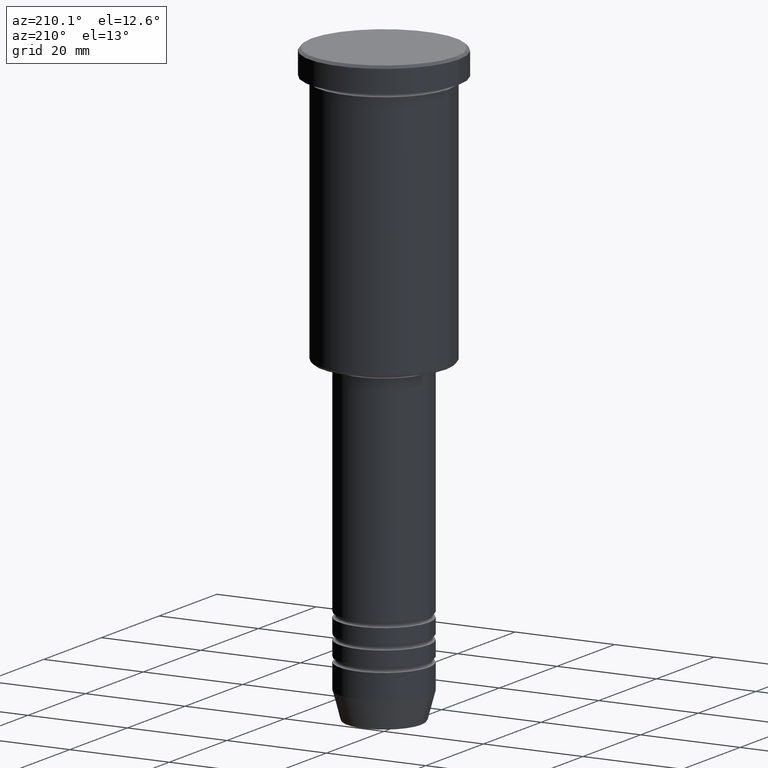
[diagram: clean part render]
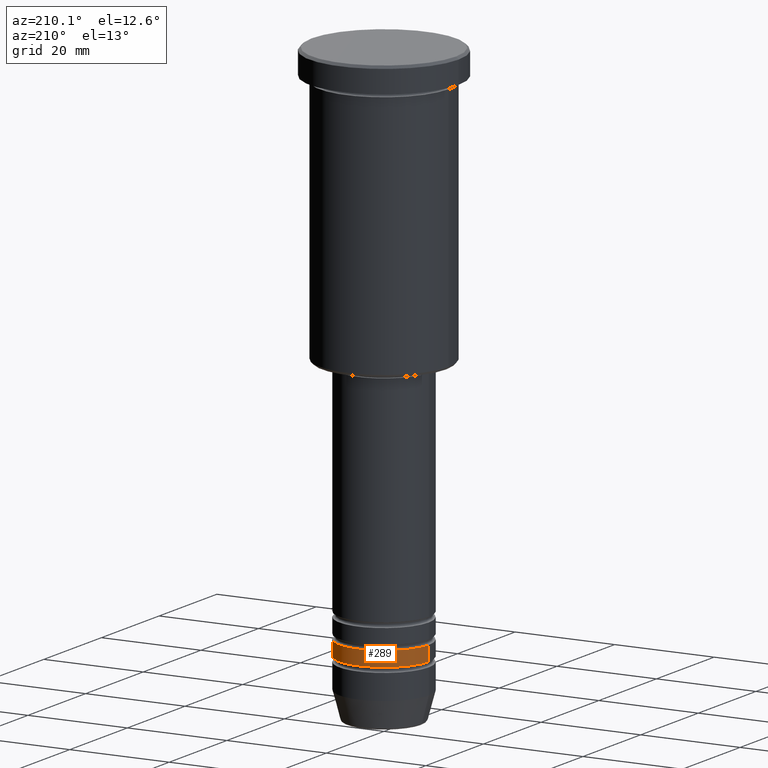
[diagram: same view with one face highlighted and labeled with its STEP entity id]
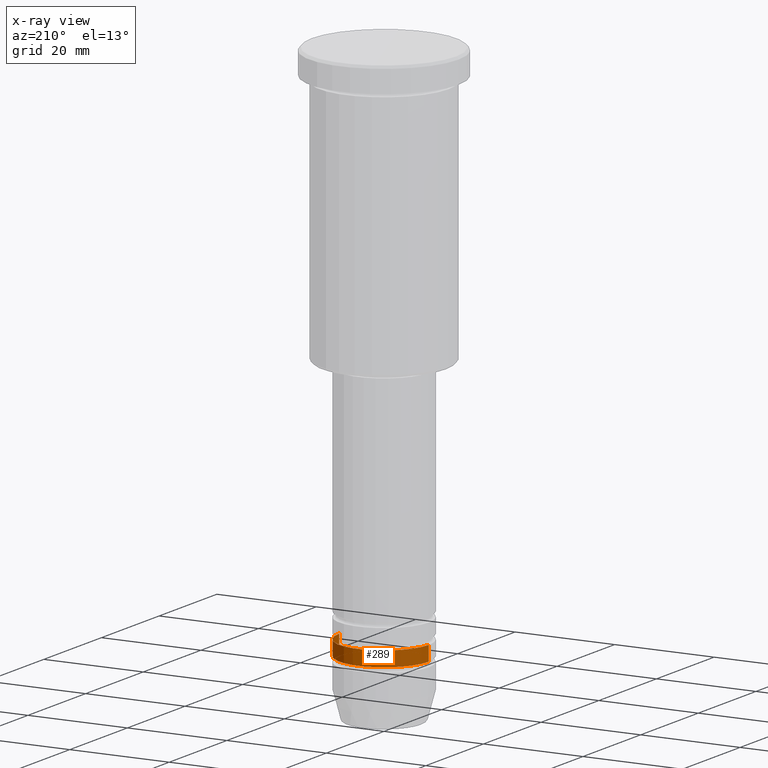
[diagram: x-ray of the same camera — body ghosted, the highlighted face saturated]
A machine part, auxiliary view. The second image highlights one B-rep face of the part: STEP entity #289.
The next image is the same camera in x-ray: the body ghosted, the highlighted face saturated — about 0% of this face is hidden behind the body in this view.
In plain terms, the highlighted cylindrical surface (partial cylindrical patch) has radius 9 mm, axis along (-0, -0, 1).
Its self-contained STEP definition (entity closure, byte-faithful):
#14 = VERTEX_POINT ( 'NONE', #1009 ) ;
#23 = DIRECTION ( 'NONE',  ( 1.000000000000000000, 0.000000000000000000, 0.000000000000000000 ) ) ;
#95 = ORIENTED_EDGE ( 'NONE', *, *, #102, .T. ) ;
#97 = VERTEX_POINT ( 'NONE', #288 ) ;
#102 = EDGE_CURVE ( 'NONE', #623, #703, #824, .T. ) ;
#105 = FACE_OUTER_BOUND ( 'NONE', #634, .T. ) ;
#148 = VECTOR ( 'NONE', #1107, 1000.000000000000000 ) ;
#194 = CYLINDRICAL_SURFACE ( 'NONE', #491, 9.000000000000001776 ) ;
#206 = DIRECTION ( 'NONE',  ( -0.000000000000000000, -0.000000000000000000, 1.000000000000000000 ) ) ;
#279 = CARTESIAN_POINT ( 'NONE',  ( -9.000000000000001776, 1.102182119232617911E-15, -108.4999999999999716 ) ) ;
#288 = CARTESIAN_POINT ( 'NONE',  ( -9.000000000000000000, 1.102182119232617714E-15, -105.4999999999999858 ) ) ;
#289 = ADVANCED_FACE ( 'NONE', ( #105 ), #194, .T. ) ;
#292 = DIRECTION ( 'NONE',  ( 1.000000000000000000, 0.000000000000000000, 0.000000000000000000 ) ) ;
#351 = DIRECTION ( 'NONE',  ( -0.000000000000000000, -0.000000000000000000, 1.000000000000000000 ) ) ;
#376 = AXIS2_PLACEMENT_3D ( 'NONE', #718, #910, #810 ) ;
#383 = EDGE_CURVE ( 'NONE', #623, #14, #739, .T. ) ;
#427 = AXIS2_PLACEMENT_3D ( 'NONE', #655, #734, #23 ) ;
#491 = AXIS2_PLACEMENT_3D ( 'NONE', #917, #206, #292 ) ;
#548 = ORIENTED_EDGE ( 'NONE', *, *, #618, .T. ) ;
#618 = EDGE_CURVE ( 'NONE', #703, #97, #720, .T. ) ;
#623 = VERTEX_POINT ( 'NONE', #714 ) ;
#634 = EDGE_LOOP ( 'NONE', ( #95, #548, #856, #971 ) ) ;
#643 = VECTOR ( 'NONE', #351, 1000.000000000000000 ) ;
#655 = CARTESIAN_POINT ( 'NONE',  ( 0.000000000000000000, 0.000000000000000000, -108.4999999999999716 ) ) ;
#703 = VERTEX_POINT ( 'NONE', #279 ) ;
#714 = CARTESIAN_POINT ( 'NONE',  ( 9.000000000000001776, 0.000000000000000000, -108.4999999999999716 ) ) ;
#718 = CARTESIAN_POINT ( 'NONE',  ( 0.000000000000000000, 0.000000000000000000, -105.4999999999999858 ) ) ;
#720 = LINE ( 'NONE', #1085, #643 ) ;
#734 = DIRECTION ( 'NONE',  ( -0.000000000000000000, -0.000000000000000000, 1.000000000000000000 ) ) ;
#739 = LINE ( 'NONE', #823, #148 ) ;
#810 = DIRECTION ( 'NONE',  ( 1.000000000000000000, 0.000000000000000000, 0.000000000000000000 ) ) ;
#811 = CIRCLE ( 'NONE', #376, 9.000000000000000000 ) ;
#823 = CARTESIAN_POINT ( 'NONE',  ( 9.000000000000001776, 0.000000000000000000, 0.000000000000000000 ) ) ;
#824 = CIRCLE ( 'NONE', #427, 9.000000000000001776 ) ;
#856 = ORIENTED_EDGE ( 'NONE', *, *, #1056, .F. ) ;
#910 = DIRECTION ( 'NONE',  ( -0.000000000000000000, -0.000000000000000000, 1.000000000000000000 ) ) ;
#917 = CARTESIAN_POINT ( 'NONE',  ( 0.000000000000000000, 0.000000000000000000, 0.000000000000000000 ) ) ;
#971 = ORIENTED_EDGE ( 'NONE', *, *, #383, .F. ) ;
#1009 = CARTESIAN_POINT ( 'NONE',  ( 9.000000000000000000, 0.000000000000000000, -105.4999999999999858 ) ) ;
#1056 = EDGE_CURVE ( 'NONE', #14, #97, #811, .T. ) ;
#1085 = CARTESIAN_POINT ( 'NONE',  ( -9.000000000000001776, 1.102182119232617911E-15, 0.000000000000000000 ) ) ;
#1107 = DIRECTION ( 'NONE',  ( -0.000000000000000000, -0.000000000000000000, 1.000000000000000000 ) ) ;